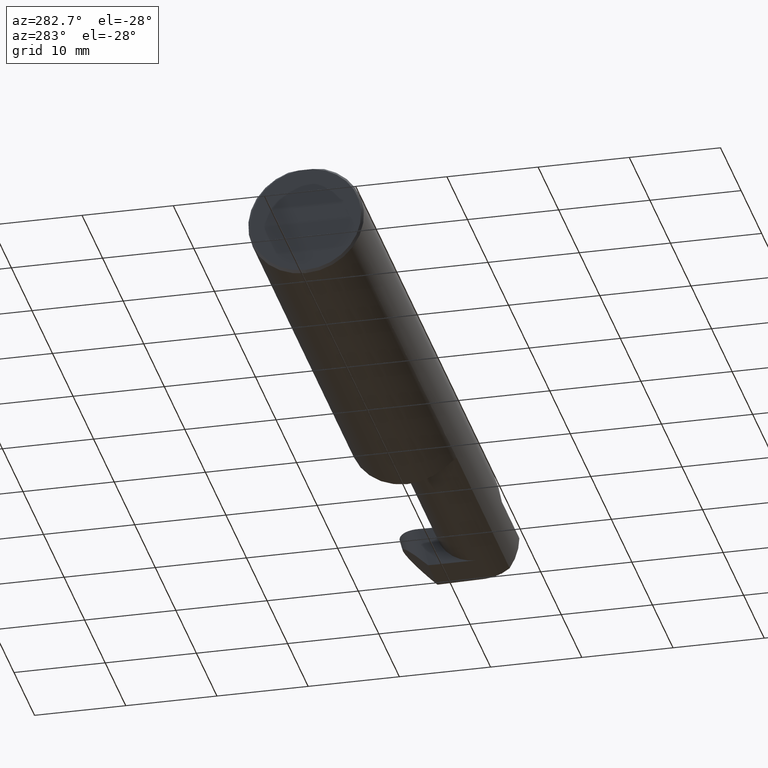
[diagram: clean part render]
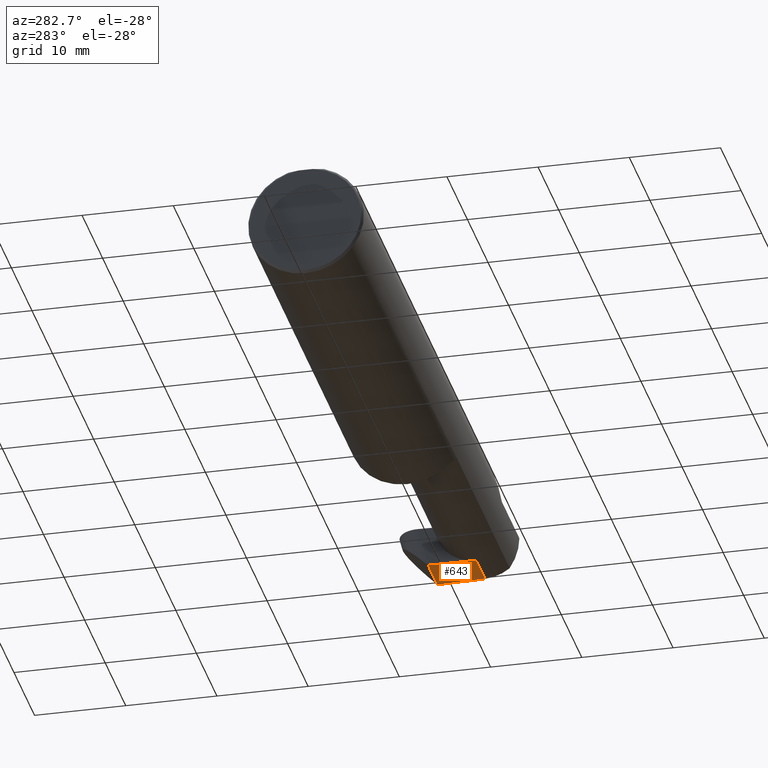
[diagram: same view with one face highlighted and labeled with its STEP entity id]
A machine part, auxiliary view. The second image highlights one B-rep face of the part: STEP entity #643.
In plain terms, the highlighted planar face has unit normal (-0, 0, 1).
Its self-contained STEP definition (entity closure, byte-faithful):
#9 = LINE ( 'NONE', #447, #463 ) ;
#34 = LINE ( 'NONE', #475, #42 ) ;
#35 = EDGE_LOOP ( 'NONE', ( #161, #211, #97, #577, #403, #647, #365 ) ) ;
#37 = EDGE_CURVE ( 'NONE', #691, #153, #449, .T. ) ;
#42 = VECTOR ( 'NONE', #705, 39.37007874015748854 ) ;
#56 = VERTEX_POINT ( 'NONE', #512 ) ;
#93 = DIRECTION ( 'NONE',  ( 0.000000000000000000, -1.000000000000000000, 1.223176342469858371E-16 ) ) ;
#97 = ORIENTED_EDGE ( 'NONE', *, *, #413, .T. ) ;
#102 = CARTESIAN_POINT ( 'NONE',  ( 2.824252866266283135, -0.1210320425578234466, -0.1750000000000000722 ) ) ;
#108 = CARTESIAN_POINT ( 'NONE',  ( 2.816530679450678587, 0.1001024549918554940, -0.1750000000000001277 ) ) ;
#119 = DIRECTION ( 'NONE',  ( 1.000000000000000000, -0.000000000000000000, -0.000000000000000000 ) ) ;
#124 = CARTESIAN_POINT ( 'NONE',  ( 2.817597862438286249, -0.1008500000000000368, -0.1750000000000000444 ) ) ;
#153 = VERTEX_POINT ( 'NONE', #425 ) ;
#157 = VECTOR ( 'NONE', #164, 39.37007874015748854 ) ;
#161 = ORIENTED_EDGE ( 'NONE', *, *, #624, .T. ) ;
#164 = DIRECTION ( 'NONE',  ( -0.0003154085283454421441, 0.9999999502587288980, -1.223178646569383192E-16 ) ) ;
#168 = CARTESIAN_POINT ( 'NONE',  ( 2.995191146414767136, 0.1058243371481696476, -0.1750000000000001277 ) ) ;
#172 = LINE ( 'NONE', #559, #299 ) ;
#208 = DIRECTION ( 'NONE',  ( -0.000000000000000000, 1.223176342469858371E-16, 1.000000000000000000 ) ) ;
#210 = FACE_OUTER_BOUND ( 'NONE', #35, .T. ) ;
#211 = ORIENTED_EDGE ( 'NONE', *, *, #37, .T. ) ;
#233 = CARTESIAN_POINT ( 'NONE',  ( 2.817543629401487948, 0.07109536363756167876, -0.1750000000000000722 ) ) ;
#236 = EDGE_CURVE ( 'NONE', #644, #56, #34, .T. ) ;
#248 = CARTESIAN_POINT ( 'NONE',  ( 2.816493473585234053, 0.1058243371481696476, -0.1750000000000001277 ) ) ;
#283 = CARTESIAN_POINT ( 'NONE',  ( 2.816464084461495876, 0.1020094859694684469, -0.1750000000000001554 ) ) ;
#294 = CARTESIAN_POINT ( 'NONE',  ( 2.816451678931664482, 0.1039173297714279937, -0.1750000000000001554 ) ) ;
#299 = VECTOR ( 'NONE', #119, 39.37007874015748143 ) ;
#313 = CARTESIAN_POINT ( 'NONE',  ( 2.995191146414767136, 0.1058243371481696476, -0.1750000000000001277 ) ) ;
#316 = VERTEX_POINT ( 'NONE', #233 ) ;
#320 = EDGE_CURVE ( 'NONE', #393, #316, #383, .T. ) ;
#327 = EDGE_CURVE ( 'NONE', #56, #393, #9, .T. ) ;
#335 = CARTESIAN_POINT ( 'NONE',  ( 2.995153940549321714, 0.1001024549918553413, -0.1750000000000001277 ) ) ;
#365 = ORIENTED_EDGE ( 'NONE', *, *, #320, .T. ) ;
#368 = VERTEX_POINT ( 'NONE', #168 ) ;
#370 = CARTESIAN_POINT ( 'NONE',  ( 2.995220535538503981, 0.1020094859694683359, -0.1750000000000001277 ) ) ;
#380 = AXIS2_PLACEMENT_3D ( 'NONE', #419, #208, #93 ) ;
#383 = LINE ( 'NONE', #607, #157 ) ;
#393 = VERTEX_POINT ( 'NONE', #124 ) ;
#403 = ORIENTED_EDGE ( 'NONE', *, *, #236, .T. ) ;
#413 = EDGE_CURVE ( 'NONE', #153, #368, #172, .T. ) ;
#419 = CARTESIAN_POINT ( 'NONE',  ( 3.402190948718818664, -0.1008500000000000785, -0.1750000000000000722 ) ) ;
#425 = CARTESIAN_POINT ( 'NONE',  ( 2.816493473585234053, 0.1058243371481696476, -0.1750000000000001277 ) ) ;
#447 = CARTESIAN_POINT ( 'NONE',  ( 3.402190948718818664, -0.1008500000000000785, -0.1750000000000000722 ) ) ;
#449 =( BOUNDED_CURVE ( )  B_SPLINE_CURVE ( 3, ( #657, #283, #294, #248 ),
 .UNSPECIFIED., .F., .T. ) 
 B_SPLINE_CURVE_WITH_KNOTS ( ( 4, 4 ),
 ( 1.637964922114649946, 1.696770350908906488 ),
 .UNSPECIFIED. ) 
 CURVE ( )  GEOMETRIC_REPRESENTATION_ITEM ( )  RATIONAL_B_SPLINE_CURVE ( ( 1.000000000000000000, 0.9997118475557110751, 0.9997118475557110751, 1.000000000000000000 ) ) 
 REPRESENTATION_ITEM ( '' )  );
#463 = VECTOR ( 'NONE', #709, 39.37007874015748143 ) ;
#468 = DIRECTION ( 'NONE',  ( -0.03489949670249350294, 0.9993908270190959842, -1.222058880457094394E-16 ) ) ;
#475 = CARTESIAN_POINT ( 'NONE',  ( 2.988640834071240260, -0.08640851177310855669, -0.1750000000000000722 ) ) ;
#477 = CARTESIAN_POINT ( 'NONE',  ( 2.995232941068335375, 0.1039173297714279520, -0.1750000000000001277 ) ) ;
#512 = CARTESIAN_POINT ( 'NONE',  ( 2.988136526189751230, -0.1008500000000000785, -0.1750000000000000722 ) ) ;
#518 = VECTOR ( 'NONE', #468, 39.37007874015748143 ) ;
#559 = CARTESIAN_POINT ( 'NONE',  ( -0.002039370078740339320, 0.1058243371481696476, -0.1750000000000001277 ) ) ;
#577 = ORIENTED_EDGE ( 'NONE', *, *, #619, .T. ) ;
#594 = LINE ( 'NONE', #102, #518 ) ;
#607 = CARTESIAN_POINT ( 'NONE',  ( 2.817597920595090955, -0.1010343856358531661, -0.1750000000000000722 ) ) ;
#619 = EDGE_CURVE ( 'NONE', #368, #644, #638, .T. ) ;
#624 = EDGE_CURVE ( 'NONE', #316, #691, #594, .T. ) ;
#629 = PLANE ( 'NONE',  #380 ) ;
#638 =( BOUNDED_CURVE ( )  B_SPLINE_CURVE ( 3, ( #313, #477, #370, #692 ),
 .UNSPECIFIED., .F., .T. ) 
 B_SPLINE_CURVE_WITH_KNOTS ( ( 4, 4 ),
 ( 4.586414956270678189, 4.645220385064936508 ),
 .UNSPECIFIED. ) 
 CURVE ( )  GEOMETRIC_REPRESENTATION_ITEM ( )  RATIONAL_B_SPLINE_CURVE ( ( 1.000000000000000000, 0.9997118475557109640, 0.9997118475557109640, 1.000000000000000000 ) ) 
 REPRESENTATION_ITEM ( '' )  );
#643 = ADVANCED_FACE ( 'NONE', ( #210 ), #629, .F. ) ;
#644 = VERTEX_POINT ( 'NONE', #335 ) ;
#647 = ORIENTED_EDGE ( 'NONE', *, *, #327, .T. ) ;
#657 = CARTESIAN_POINT ( 'NONE',  ( 2.816530679450678587, 0.1001024549918554940, -0.1750000000000001277 ) ) ;
#691 = VERTEX_POINT ( 'NONE', #108 ) ;
#692 = CARTESIAN_POINT ( 'NONE',  ( 2.995153940549321714, 0.1001024549918553413, -0.1750000000000001277 ) ) ;
#705 = DIRECTION ( 'NONE',  ( -0.03489949670249512664, -0.9993908270190959842, 1.222058880457094394E-16 ) ) ;
#709 = DIRECTION ( 'NONE',  ( -1.000000000000000000, -0.000000000000000000, -0.000000000000000000 ) ) ;